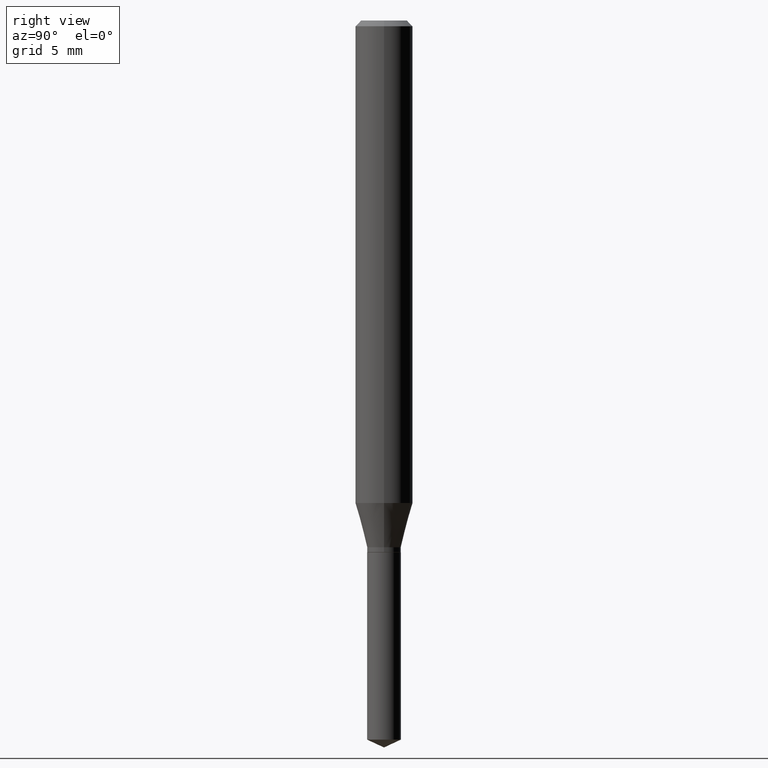
[diagram: clean part render]
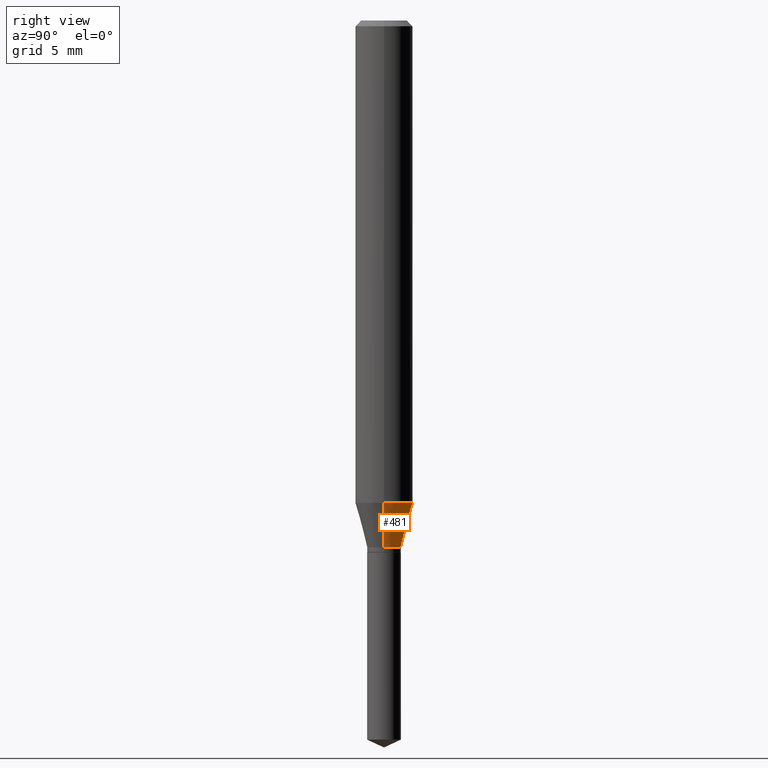
[diagram: same view with one face highlighted and labeled with its STEP entity id]
A machine part, right view. The second image highlights one B-rep face of the part: STEP entity #481.
In plain terms, the highlighted conical surface has half-angle 15 deg.
Its self-contained STEP definition (entity closure, byte-faithful):
#6 = ORIENTED_EDGE ( 'NONE', *, *, #182, .F. ) ;
#10 = CONICAL_SURFACE ( 'NONE', #372, 0.03464999999999998637, 0.2617993877991499629 ) ;
#13 = VERTEX_POINT ( 'NONE', #457 ) ;
#24 = CIRCLE ( 'NONE', #417, 0.05905000000000011628 ) ;
#40 = CIRCLE ( 'NONE', #161, 0.03464999999999998637 ) ;
#61 = EDGE_CURVE ( 'NONE', #156, #251, #453, .T. ) ;
#72 = DIRECTION ( 'NONE',  ( -2.445468806185136597E-29, 3.491481338843145583E-15, 1.000000000000000000 ) ) ;
#74 = DIRECTION ( 'NONE',  ( -0.2588190451025212391, 5.211531920934549464E-15, 0.9659258262890679791 ) ) ;
#125 = LINE ( 'NONE', #243, #177 ) ;
#131 = CARTESIAN_POINT ( 'NONE',  ( 0.03464999999999998637, -4.027074576221682993E-15, -1.084099999999999842 ) ) ;
#153 = ORIENTED_EDGE ( 'NONE', *, *, #61, .T. ) ;
#156 = VERTEX_POINT ( 'NONE', #278 ) ;
#161 = AXIS2_PLACEMENT_3D ( 'NONE', #435, #172, #242 ) ;
#166 = EDGE_CURVE ( 'NONE', #222, #156, #40, .T. ) ;
#172 = DIRECTION ( 'NONE',  ( -2.445468806185136597E-29, 3.491481338843145583E-15, 1.000000000000000000 ) ) ;
#177 = VECTOR ( 'NONE', #326, 39.37007874015748854 ) ;
#182 = EDGE_CURVE ( 'NONE', #222, #13, #125, .T. ) ;
#207 = CARTESIAN_POINT ( 'NONE',  ( -0.05905000000000011628, -3.047598021667626732E-15, -0.9930379602953189888 ) ) ;
#222 = VERTEX_POINT ( 'NONE', #131 ) ;
#224 = DIRECTION ( 'NONE',  ( -2.445468806185136597E-29, 3.491481338843145583E-15, 1.000000000000000000 ) ) ;
#242 = DIRECTION ( 'NONE',  ( 1.000000000000000000, -6.982962677686267499E-15, 0.000000000000000000 ) ) ;
#243 = CARTESIAN_POINT ( 'NONE',  ( 0.03464999999999998637, -4.027074576221682993E-15, -1.084099999999999842 ) ) ;
#251 = VERTEX_POINT ( 'NONE', #207 ) ;
#253 = CARTESIAN_POINT ( 'NONE',  ( 2.428443355259917154E-29, -3.467173507133967014E-15, -0.9930379602953189888 ) ) ;
#254 = ORIENTED_EDGE ( 'NONE', *, *, #359, .F. ) ;
#259 = CARTESIAN_POINT ( 'NONE',  ( 2.651132732785306232E-29, -3.785114919439853921E-15, -1.084099999999999842 ) ) ;
#278 = CARTESIAN_POINT ( 'NONE',  ( -0.03464999999999998637, -3.556194694126252781E-15, -1.084099999999999842 ) ) ;
#280 = EDGE_LOOP ( 'NONE', ( #429, #153, #254, #6 ) ) ;
#308 = FACE_OUTER_BOUND ( 'NONE', #280, .T. ) ;
#318 = VECTOR ( 'NONE', #74, 39.37007874015748854 ) ;
#326 = DIRECTION ( 'NONE',  ( 0.2588190451025212391, 1.565188264969622362E-15, 0.9659258262890679791 ) ) ;
#359 = EDGE_CURVE ( 'NONE', #13, #251, #24, .T. ) ;
#363 = DIRECTION ( 'NONE',  ( 1.000000000000000000, -6.982962677686266711E-15, 0.000000000000000000 ) ) ;
#372 = AXIS2_PLACEMENT_3D ( 'NONE', #259, #224, #454 ) ;
#417 = AXIS2_PLACEMENT_3D ( 'NONE', #253, #72, #363 ) ;
#429 = ORIENTED_EDGE ( 'NONE', *, *, #166, .T. ) ;
#435 = CARTESIAN_POINT ( 'NONE',  ( 2.651132732785306232E-29, -3.785114919439853921E-15, -1.084099999999999842 ) ) ;
#453 = LINE ( 'NONE', #461, #318 ) ;
#454 = DIRECTION ( 'NONE',  ( 1.000000000000000000, -6.982962677686267499E-15, 0.000000000000000000 ) ) ;
#457 = CARTESIAN_POINT ( 'NONE',  ( 0.05905000000000011628, -3.879517453251341540E-15, -0.9930379602953189888 ) ) ;
#461 = CARTESIAN_POINT ( 'NONE',  ( -0.03464999999999998637, -3.538911861498979107E-15, -1.084099999999999842 ) ) ;
#481 = ADVANCED_FACE ( 'NONE', ( #308 ), #10, .T. ) ;